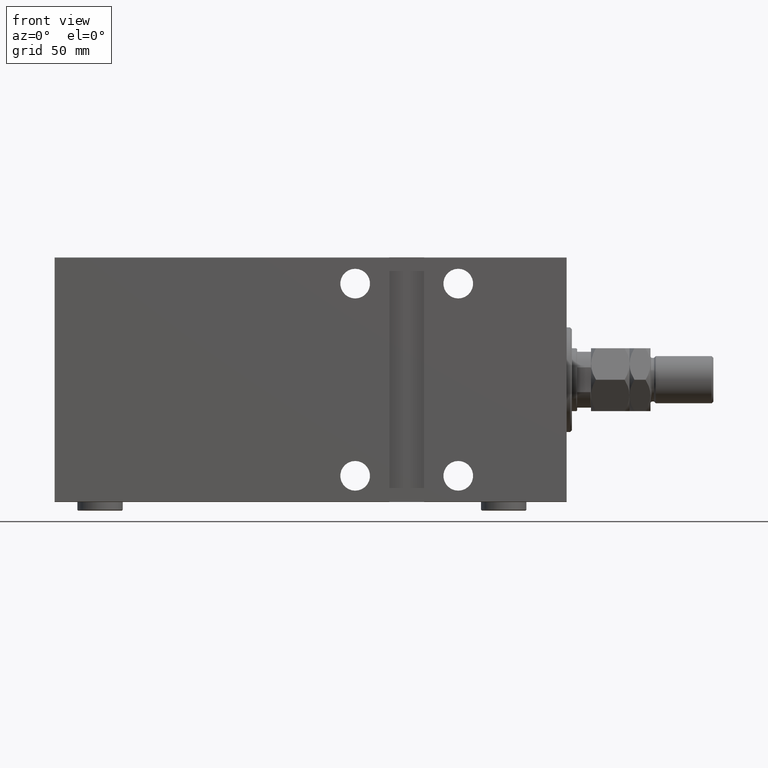
[diagram: clean part render]
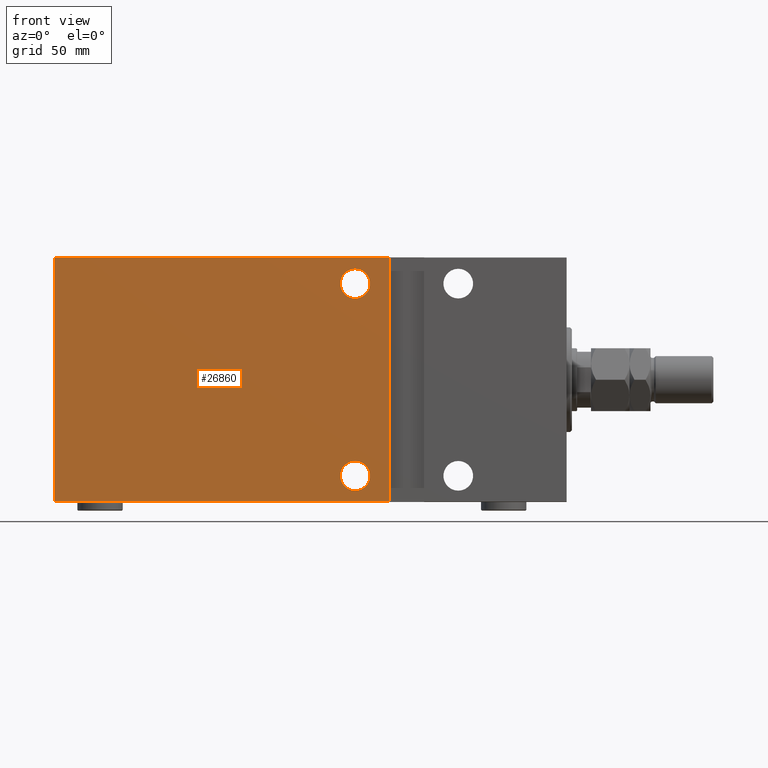
[diagram: same view with one face highlighted and labeled with its STEP entity id]
A machine part, front view. The second image highlights one B-rep face of the part: STEP entity #26860.
In plain terms, the highlighted planar face has unit normal (-0, 1, -0).
Its self-contained STEP definition (entity closure, byte-faithful):
#385 = CIRCLE ( 'NONE', #38272, 8.500000000000007105 ) ;
#712 = CARTESIAN_POINT ( 'NONE',  ( 121.0000000000000142, 55.00000000000004263, 55.00000000000000711 ) ) ;
#1049 = EDGE_CURVE ( 'NONE', #9022, #6233, #33011, .T. ) ;
#2257 = VERTEX_POINT ( 'NONE', #9466 ) ;
#2630 = AXIS2_PLACEMENT_3D ( 'NONE', #45876, #38442, #20530 ) ;
#3743 = DIRECTION ( 'NONE',  ( 0.000000000000000000, 1.000000000000000000, 0.000000000000000000 ) ) ;
#4845 = LINE ( 'NONE', #26259, #23786 ) ;
#4992 = EDGE_CURVE ( 'NONE', #9022, #25995, #42969, .T. ) ;
#6103 = CARTESIAN_POINT ( 'NONE',  ( 293.0000000000000000, 55.00000000000002132, -69.69999999999998863 ) ) ;
#6233 = VERTEX_POINT ( 'NONE', #26619 ) ;
#7197 = CARTESIAN_POINT ( 'NONE',  ( 121.0000000000000142, 55.00000000000004263, 46.50000000000001421 ) ) ;
#7630 = EDGE_CURVE ( 'NONE', #36739, #12498, #19830, .T. ) ;
#8801 = ORIENTED_EDGE ( 'NONE', *, *, #21119, .F. ) ;
#8905 = ORIENTED_EDGE ( 'NONE', *, *, #7630, .F. ) ;
#9022 = VERTEX_POINT ( 'NONE', #11063 ) ;
#9466 = CARTESIAN_POINT ( 'NONE',  ( 121.0000000000000000, 55.00000000000004263, -46.49999999999998579 ) ) ;
#9732 = CARTESIAN_POINT ( 'NONE',  ( 121.0000000000000000, 55.00000000000004263, -63.50000000000000000 ) ) ;
#11063 = CARTESIAN_POINT ( 'NONE',  ( 101.5000000000000000, 55.00000000000000711, 69.70000000000001705 ) ) ;
#12498 = VERTEX_POINT ( 'NONE', #44936 ) ;
#14213 = DIRECTION ( 'NONE',  ( 0.000000000000000000, 0.000000000000000000, 1.000000000000000000 ) ) ;
#15293 = VECTOR ( 'NONE', #40001, 1000.000000000000000 ) ;
#15953 = FACE_BOUND ( 'NONE', #35318, .T. ) ;
#16053 = CIRCLE ( 'NONE', #24250, 8.500000000000007105 ) ;
#16254 = DIRECTION ( 'NONE',  ( 0.000000000000000000, 0.000000000000000000, 1.000000000000000000 ) ) ;
#16773 = VECTOR ( 'NONE', #33925, 1000.000000000000000 ) ;
#17333 = EDGE_CURVE ( 'NONE', #2257, #23644, #385, .T. ) ;
#18460 = ORIENTED_EDGE ( 'NONE', *, *, #1049, .F. ) ;
#19462 = CARTESIAN_POINT ( 'NONE',  ( 293.0000000000000000, 55.00000000000002132, -70.00000000000000000 ) ) ;
#19830 = CIRCLE ( 'NONE', #20582, 8.499999999999992895 ) ;
#20457 = DIRECTION ( 'NONE',  ( 0.000000000000000000, 1.000000000000000000, 0.000000000000000000 ) ) ;
#20530 = DIRECTION ( 'NONE',  ( 0.000000000000000000, 0.000000000000000000, 1.000000000000000000 ) ) ;
#20582 = AXIS2_PLACEMENT_3D ( 'NONE', #712, #3743, #14213 ) ;
#20690 = ORIENTED_EDGE ( 'NONE', *, *, #23614, .F. ) ;
#21119 = EDGE_CURVE ( 'NONE', #12498, #36739, #40510, .T. ) ;
#22023 = CARTESIAN_POINT ( 'NONE',  ( 293.0000000000000000, 54.99999999999999289, 69.70000000000001705 ) ) ;
#22686 = EDGE_CURVE ( 'NONE', #27195, #25995, #26267, .T. ) ;
#22852 = AXIS2_PLACEMENT_3D ( 'NONE', #19462, #23878, #41559 ) ;
#23614 = EDGE_CURVE ( 'NONE', #23644, #2257, #16053, .T. ) ;
#23644 = VERTEX_POINT ( 'NONE', #9732 ) ;
#23786 = VECTOR ( 'NONE', #32801, 1000.000000000000000 ) ;
#23878 = DIRECTION ( 'NONE',  ( 0.000000000000000000, -1.000000000000000000, -1.982541115402065110E-16 ) ) ;
#24238 = ORIENTED_EDGE ( 'NONE', *, *, #17333, .F. ) ;
#24250 = AXIS2_PLACEMENT_3D ( 'NONE', #30000, #20457, #16254 ) ;
#25604 = CARTESIAN_POINT ( 'NONE',  ( 121.0000000000000000, 55.00000000000004263, -54.99999999999999289 ) ) ;
#25995 = VERTEX_POINT ( 'NONE', #37776 ) ;
#26259 = CARTESIAN_POINT ( 'NONE',  ( 293.0000000000000000, 55.00000000000002132, -69.69999999999998863 ) ) ;
#26267 = LINE ( 'NONE', #36289, #15293 ) ;
#26619 = CARTESIAN_POINT ( 'NONE',  ( 101.4999999999999858, 55.00000000000000711, -69.69999999999998863 ) ) ;
#26860 = ADVANCED_FACE ( 'NONE', ( #41090, #15953, #30169 ), #37144, .F. ) ;
#27195 = VERTEX_POINT ( 'NONE', #6103 ) ;
#27289 = VECTOR ( 'NONE', #29246, 1000.000000000000000 ) ;
#28005 = ORIENTED_EDGE ( 'NONE', *, *, #4992, .T. ) ;
#29246 = DIRECTION ( 'NONE',  ( 1.000000000000000000, 0.000000000000000000, 0.000000000000000000 ) ) ;
#30000 = CARTESIAN_POINT ( 'NONE',  ( 121.0000000000000000, 55.00000000000004263, -54.99999999999999289 ) ) ;
#30169 = FACE_OUTER_BOUND ( 'NONE', #36268, .T. ) ;
#31904 = EDGE_LOOP ( 'NONE', ( #24238, #20690 ) ) ;
#32801 = DIRECTION ( 'NONE',  ( -1.000000000000000000, 0.000000000000000000, 0.000000000000000000 ) ) ;
#33011 = LINE ( 'NONE', #40442, #16773 ) ;
#33046 = EDGE_CURVE ( 'NONE', #27195, #6233, #4845, .T. ) ;
#33925 = DIRECTION ( 'NONE',  ( -1.982541115402065110E-16, 0.000000000000000000, -1.000000000000000000 ) ) ;
#35318 = EDGE_LOOP ( 'NONE', ( #8801, #8905 ) ) ;
#35969 = ORIENTED_EDGE ( 'NONE', *, *, #33046, .T. ) ;
#36268 = EDGE_LOOP ( 'NONE', ( #40242, #35969, #18460, #28005 ) ) ;
#36289 = CARTESIAN_POINT ( 'NONE',  ( 293.0000000000000000, 55.00000000000002132, -70.00000000000000000 ) ) ;
#36317 = DIRECTION ( 'NONE',  ( 0.000000000000000000, 0.000000000000000000, 1.000000000000000000 ) ) ;
#36739 = VERTEX_POINT ( 'NONE', #7197 ) ;
#37144 = PLANE ( 'NONE',  #22852 ) ;
#37776 = CARTESIAN_POINT ( 'NONE',  ( 293.0000000000000000, 54.99999999999999289, 69.70000000000001705 ) ) ;
#38272 = AXIS2_PLACEMENT_3D ( 'NONE', #25604, #39805, #36317 ) ;
#38442 = DIRECTION ( 'NONE',  ( 0.000000000000000000, 1.000000000000000000, 0.000000000000000000 ) ) ;
#39805 = DIRECTION ( 'NONE',  ( 0.000000000000000000, 1.000000000000000000, 0.000000000000000000 ) ) ;
#40001 = DIRECTION ( 'NONE',  ( 0.000000000000000000, -1.982541115402065110E-16, 1.000000000000000000 ) ) ;
#40242 = ORIENTED_EDGE ( 'NONE', *, *, #22686, .F. ) ;
#40442 = CARTESIAN_POINT ( 'NONE',  ( 101.5000000000000000, 55.00000000000000711, 70.00000000000000000 ) ) ;
#40510 = CIRCLE ( 'NONE', #2630, 8.499999999999992895 ) ;
#41090 = FACE_BOUND ( 'NONE', #31904, .T. ) ;
#41559 = DIRECTION ( 'NONE',  ( 0.000000000000000000, 1.982541115402065110E-16, -1.000000000000000000 ) ) ;
#42969 = LINE ( 'NONE', #22023, #27289 ) ;
#44936 = CARTESIAN_POINT ( 'NONE',  ( 121.0000000000000142, 55.00000000000004263, 63.50000000000000000 ) ) ;
#45876 = CARTESIAN_POINT ( 'NONE',  ( 121.0000000000000142, 55.00000000000004263, 55.00000000000000711 ) ) ;